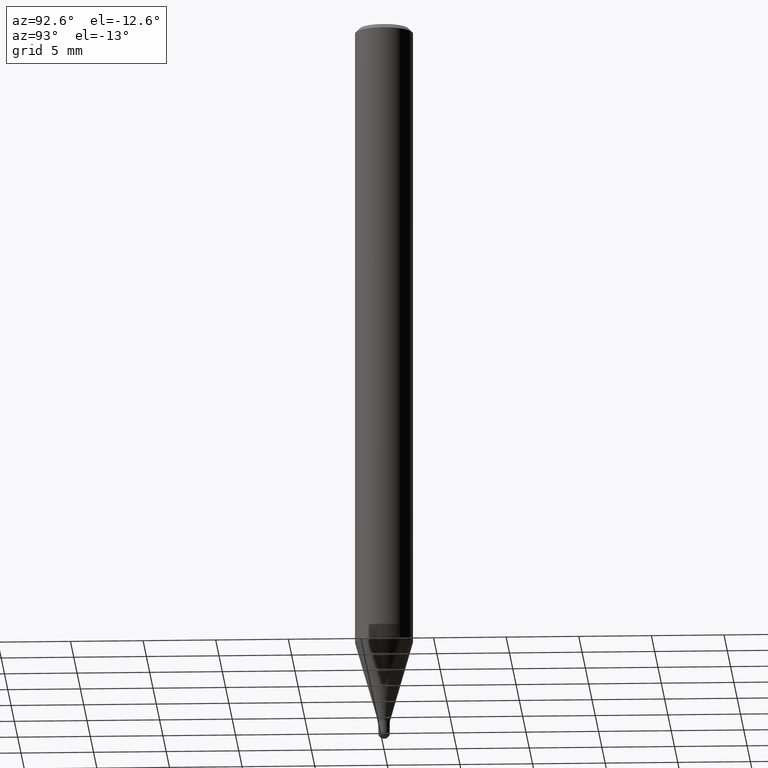
[diagram: clean part render]
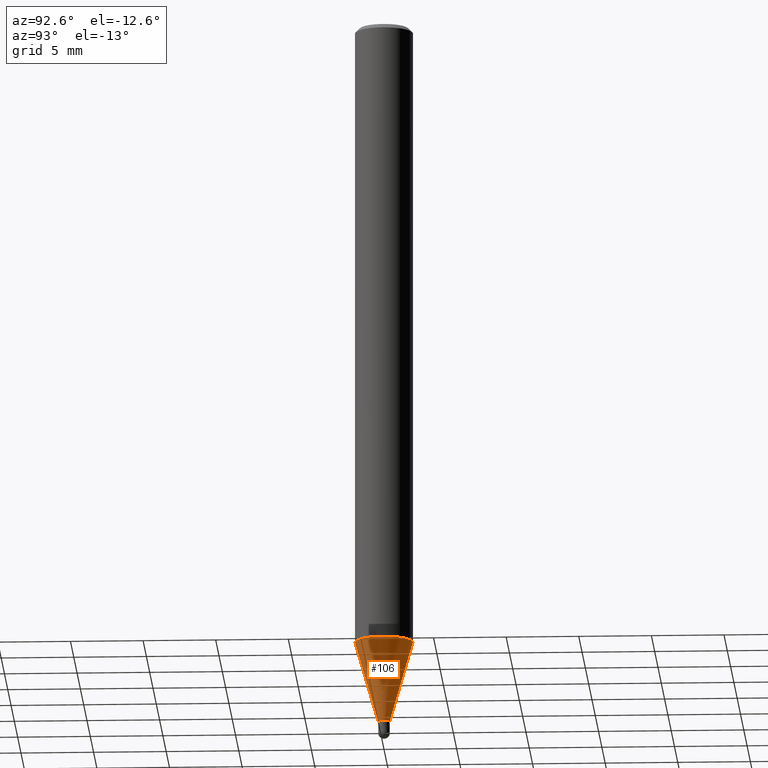
[diagram: same view with one face highlighted and labeled with its STEP entity id]
A machine part, auxiliary view. The second image highlights one B-rep face of the part: STEP entity #106.
In plain terms, the highlighted conical surface has half-angle 16 deg.
Its self-contained STEP definition (entity closure, byte-faithful):
#106=ADVANCED_FACE('',(#235),#236,.T.);
#112=EDGE_CURVE('',#182,#174,#244,.T.);
#122=EDGE_CURVE('',#186,#174,#255,.T.);
#124=EDGE_CURVE('',#184,#182,#257,.T.);
#144=EDGE_CURVE('',#186,#184,#280,.T.);
#174=VERTEX_POINT('',#314);
#182=VERTEX_POINT('',#322);
#184=VERTEX_POINT('',#324);
#186=VERTEX_POINT('',#326);
#235=FACE_OUTER_BOUND('',#370,.T.);
#236=CONICAL_SURFACE('',#371,1.19995,0.279246180255812);
#244=LINE('',#380,#381);
#255=CIRCLE('',#393,1.99995);
#257=CIRCLE('',#396,0.39995);
#280=LINE('',#425,#426);
#314=CARTESIAN_POINT('',(2.44915147732706E-016,-1.99995,-43.22));
#322=CARTESIAN_POINT('',(4.8978131121126E-017,-0.39995,-48.8));
#324=CARTESIAN_POINT('',(0.0,0.39995,-48.8));
#326=CARTESIAN_POINT('',(0.0,1.99995,-43.22));
#370=EDGE_LOOP('',(#533,#534,#535,#536));
#371=AXIS2_PLACEMENT_3D('',#537,#538,#539);
#380=CARTESIAN_POINT('',(1.46946639426916E-016,-1.19995,-46.01));
#381=VECTOR('',#554,1.0);
#393=AXIS2_PLACEMENT_3D('',#567,#568,#569);
#396=AXIS2_PLACEMENT_3D('',#570,#571,#572);
#425=CARTESIAN_POINT('',(-1.46946639426916E-016,1.19995,-46.01));
#426=VECTOR('',#605,1.0);
#533=ORIENTED_EDGE('',*,*,#144,.F.);
#534=ORIENTED_EDGE('',*,*,#122,.T.);
#535=ORIENTED_EDGE('',*,*,#112,.F.);
#536=ORIENTED_EDGE('',*,*,#124,.F.);
#537=CARTESIAN_POINT('',(0.0,0.0,-46.01));
#538=DIRECTION('',(-0.0,-0.0,1.0));
#539=DIRECTION('',(0.0,1.0,0.0));
#554=DIRECTION('',(3.37539605616001E-017,-0.275631107549324,0.961263487578267));
#567=CARTESIAN_POINT('',(0.0,0.0,-43.22));
#568=DIRECTION('',(0.0,0.0,-1.0));
#569=DIRECTION('',(0.0,1.0,0.0));
#570=CARTESIAN_POINT('',(0.0,0.0,-48.8));
#571=DIRECTION('',(0.0,0.0,-1.0));
#572=DIRECTION('',(0.0,1.0,0.0));
#605=DIRECTION('',(3.37539605616001E-017,-0.275631107549324,-0.961263487578267));